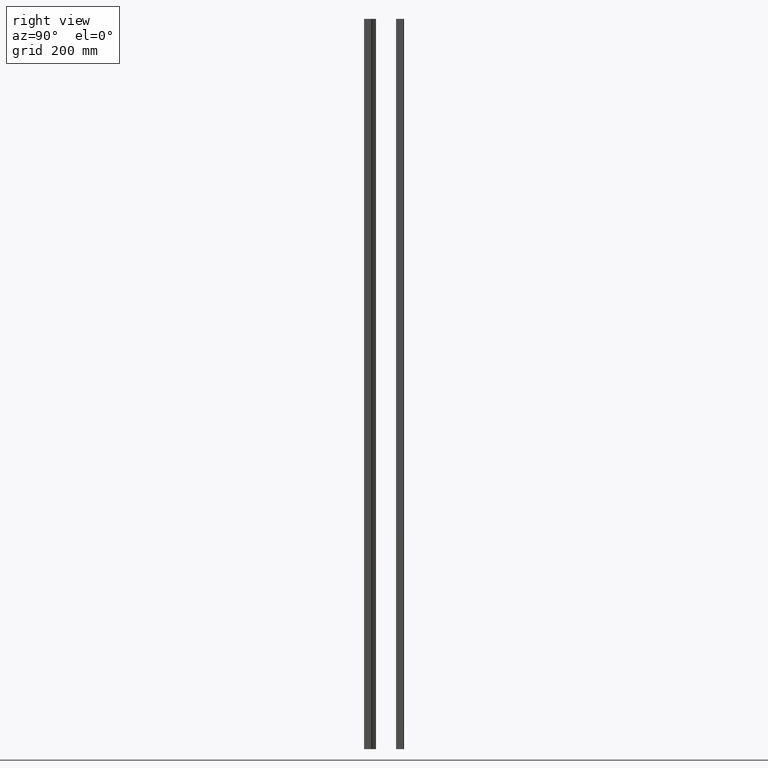
[diagram: clean part render]
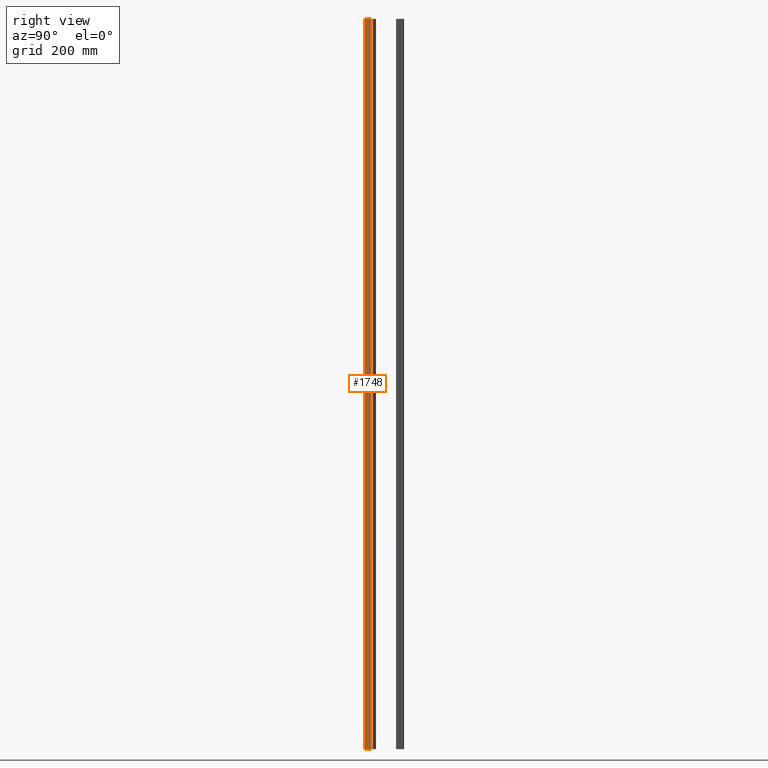
[diagram: same view with one face highlighted and labeled with its STEP entity id]
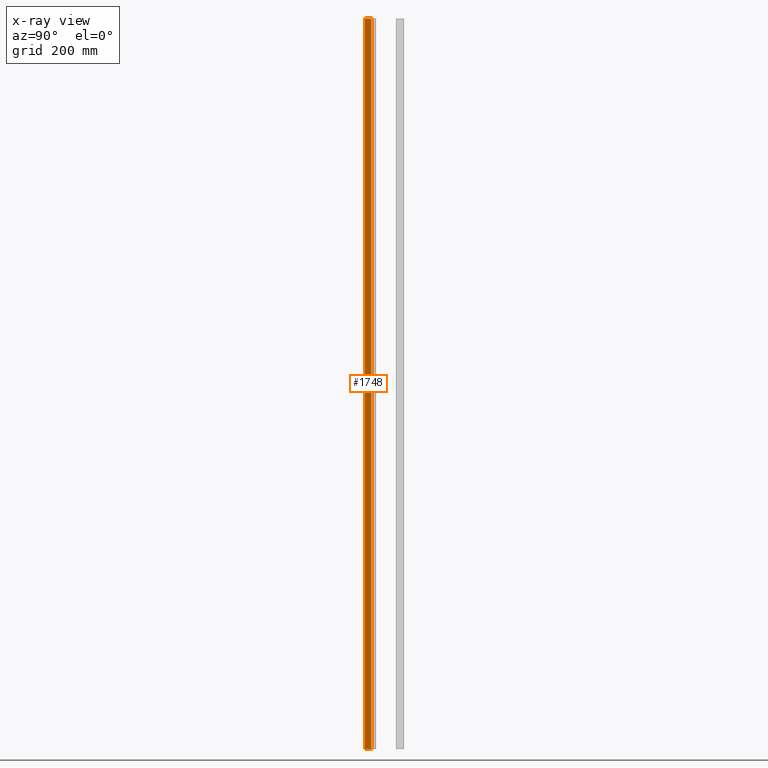
[diagram: x-ray of the same camera — body ghosted, the highlighted face saturated]
A machine part, right view. The second image highlights one B-rep face of the part: STEP entity #1748.
The next image is the same camera in x-ray: the body ghosted, the highlighted face saturated — about 0% of this face is hidden behind the body in this view.
In plain terms, the highlighted planar face has unit normal (1, -0, 0).
Its self-contained STEP definition (entity closure, byte-faithful):
#140 = DIRECTION ( 'NONE',  ( 0.000000000000000000, 0.000000000000000000, 1.000000000000000000 ) ) ;
#159 = CARTESIAN_POINT ( 'NONE',  ( 10.29999999999999893, 1.999999999999999556, 0.000000000000000000 ) ) ;
#203 = VERTEX_POINT ( 'NONE', #539 ) ;
#256 = EDGE_LOOP ( 'NONE', ( #1829, #463, #1929, #2138 ) ) ;
#445 = EDGE_CURVE ( 'NONE', #1657, #203, #2439, .T. ) ;
#463 = ORIENTED_EDGE ( 'NONE', *, *, #691, .F. ) ;
#489 = CARTESIAN_POINT ( 'NONE',  ( 10.30000000000000249, 18.00000000000000355, 0.000000000000000000 ) ) ;
#511 = AXIS2_PLACEMENT_3D ( 'NONE', #1210, #976, #646 ) ;
#539 = CARTESIAN_POINT ( 'NONE',  ( 10.30000000000000426, 18.00000000000000355, 0.000000000000000000 ) ) ;
#646 = DIRECTION ( 'NONE',  ( 2.168404344971008621E-16, 1.000000000000000000, 0.000000000000000000 ) ) ;
#691 = EDGE_CURVE ( 'NONE', #1476, #1657, #2342, .T. ) ;
#746 = PLANE ( 'NONE',  #511 ) ;
#799 = CARTESIAN_POINT ( 'NONE',  ( 10.29999999999999893, 1.999999999999999556, -1825.000000000000000 ) ) ;
#826 = CARTESIAN_POINT ( 'NONE',  ( 10.29999999999999893, 1.999999999999999556, -1825.000000000000000 ) ) ;
#902 = CARTESIAN_POINT ( 'NONE',  ( 10.30000000000000249, 18.00000000000000355, -1825.000000000000000 ) ) ;
#916 = DIRECTION ( 'NONE',  ( 2.168404344971008375E-16, 1.000000000000000000, -0.000000000000000000 ) ) ;
#976 = DIRECTION ( 'NONE',  ( 1.000000000000000000, -2.168404344971008621E-16, 0.000000000000000000 ) ) ;
#1061 = DIRECTION ( 'NONE',  ( 2.168404344971008375E-16, 1.000000000000000000, -0.000000000000000000 ) ) ;
#1080 = EDGE_CURVE ( 'NONE', #1227, #203, #1881, .T. ) ;
#1144 = CARTESIAN_POINT ( 'NONE',  ( 10.30000000000000426, 18.00000000000000355, -1825.000000000000000 ) ) ;
#1162 = VECTOR ( 'NONE', #1061, 1000.000000000000000 ) ;
#1171 = CARTESIAN_POINT ( 'NONE',  ( 10.30000000000000426, 18.00000000000000355, -1825.000000000000000 ) ) ;
#1210 = CARTESIAN_POINT ( 'NONE',  ( 10.30000000000000249, 18.00000000000000355, -1825.000000000000000 ) ) ;
#1227 = VERTEX_POINT ( 'NONE', #1171 ) ;
#1376 = VECTOR ( 'NONE', #916, 1000.000000000000000 ) ;
#1476 = VERTEX_POINT ( 'NONE', #799 ) ;
#1500 = FACE_OUTER_BOUND ( 'NONE', #256, .T. ) ;
#1657 = VERTEX_POINT ( 'NONE', #159 ) ;
#1748 = ADVANCED_FACE ( 'NONE', ( #1500 ), #746, .T. ) ;
#1765 = VECTOR ( 'NONE', #140, 1000.000000000000000 ) ;
#1829 = ORIENTED_EDGE ( 'NONE', *, *, #445, .F. ) ;
#1881 = LINE ( 'NONE', #1144, #1765 ) ;
#1922 = VECTOR ( 'NONE', #2369, 1000.000000000000000 ) ;
#1929 = ORIENTED_EDGE ( 'NONE', *, *, #2380, .T. ) ;
#2138 = ORIENTED_EDGE ( 'NONE', *, *, #1080, .T. ) ;
#2342 = LINE ( 'NONE', #826, #1922 ) ;
#2369 = DIRECTION ( 'NONE',  ( 0.000000000000000000, 0.000000000000000000, 1.000000000000000000 ) ) ;
#2380 = EDGE_CURVE ( 'NONE', #1476, #1227, #2506, .T. ) ;
#2439 = LINE ( 'NONE', #489, #1162 ) ;
#2506 = LINE ( 'NONE', #902, #1376 ) ;